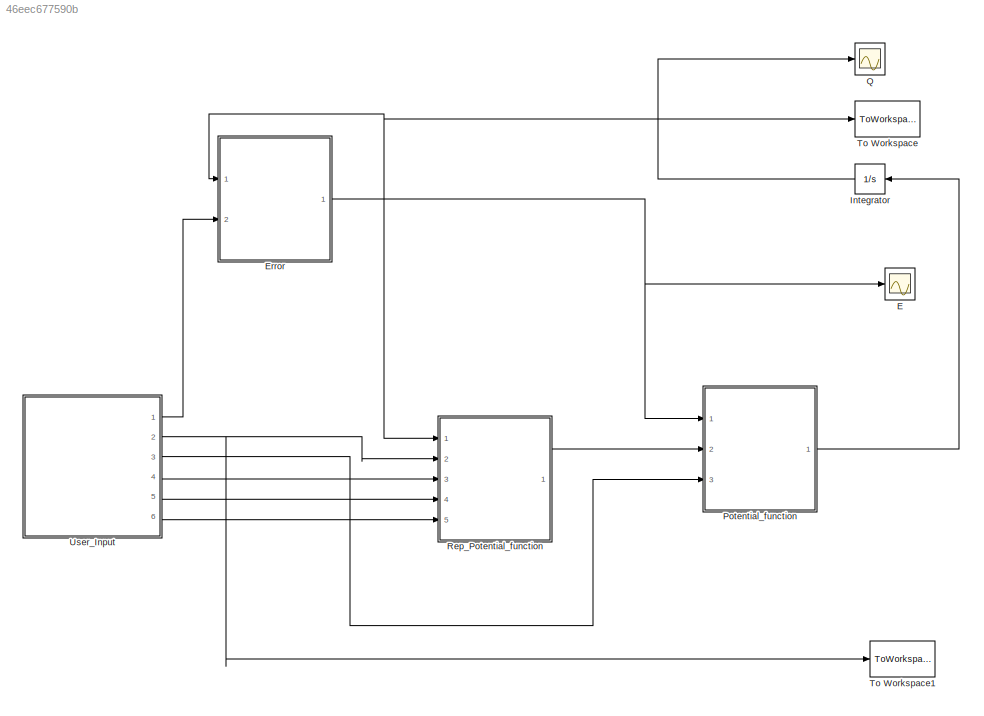
MODEL slx_46eec677590b
KIND model
CONFIG AbsTol = auto
CONFIG EnableMultiTasking = off
CONFIG FixedStep = auto
CONFIG MaxStep = auto
CONFIG MinStep = auto
CONFIG RelTol = 1e-3
CONFIG SampleTimeConstraint = Unconstrained
CONFIG Solver = VariableStepAuto
CONFIG SolverName = VariableStepAuto
CONFIG StartTime = 0.0
CONFIG StopTime = 50
BLOCK [Scope] E
  Floating = off
  NumInputPorts = 1
  Ports = [1]
  ScopeSpecificationString = Simulink.scopes.TimeScopeBlockCfg('CurrentConfiguration', extmgr.ConfigurationSet(extmgr.Configuration('Core','General UI',true),extmgr.Configuration('Core','Source UI',true),extmgr.Configuration('Sources','WiredSimulink',true,'DataLoggingVariableName','ScopeData1'),extmgr.Configuration('Visuals','Time Domain',true,'SerializedDisplays',{struct('MinYLimReal','-21.39281','MaxYLimReal','2.53526','YLa...<+1456ch>
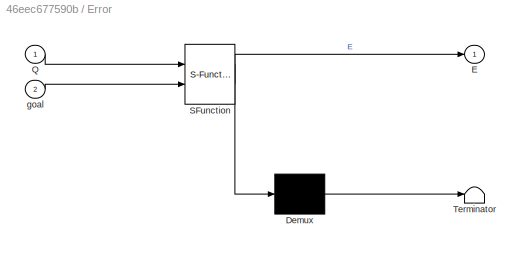
BLOCK [SubSystem] Error
  ErrorFcn = Stateflow.Translate.translate
  PermitHierarchicalResolution = ExplicitOnly
  Ports = [2, 1]
  RequestExecContextInheritance = off
  SFBlockType = MATLAB Function
  TreatAsAtomicUnit = on
BLOCK [Demux] Error/ Demux 
  Outputs = 1
  Ports = [1, 1]
BLOCK [S-Function] Error/ SFunction 
  EnableBusSupport = on
  FunctionName = sf_sfun
  PortCounts = [2 2]
  Ports = [2, 2]
  SFcnIsStateOwnerBlock = off
  SFunctionDeploymentMode = off
  Tag = Stateflow S-Function Arificial_potential 3
BLOCK [Terminator] Error/ Terminator 
BLOCK [Outport] Error/E
  IconDisplay = Port number
BLOCK [Inport] Error/Q
  IconDisplay = Port number
BLOCK [Inport] Error/goal
  IconDisplay = Port number
  Port = 2
BLOCK [Integrator] Integrator
  InitialCondition = [1;1]
  Ports = [1, 1]
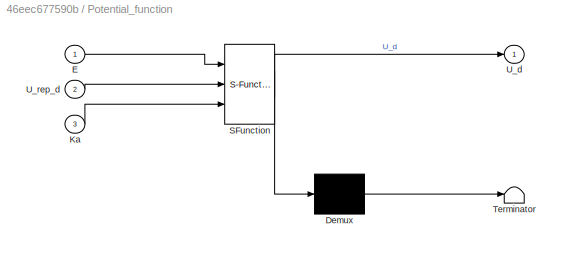
BLOCK [SubSystem] Potential_function
  ErrorFcn = Stateflow.Translate.translate
  PermitHierarchicalResolution = ExplicitOnly
  Ports = [3, 1]
  RequestExecContextInheritance = off
  SFBlockType = MATLAB Function
  TreatAsAtomicUnit = on
BLOCK [Demux] Potential_function/ Demux 
  Outputs = 1
  Ports = [1, 1]
BLOCK [S-Function] Potential_function/ SFunction 
  EnableBusSupport = on
  FunctionName = sf_sfun
  PortCounts = [3 2]
  Ports = [3, 2]
  SFcnIsStateOwnerBlock = off
  SFunctionDeploymentMode = off
  Tag = Stateflow S-Function Arificial_potential 1
BLOCK [Terminator] Potential_function/ Terminator 
BLOCK [Inport] Potential_function/E
  IconDisplay = Port number
BLOCK [Inport] Potential_function/Ka
  IconDisplay = Port number
  Port = 3
BLOCK [Outport] Potential_function/U_d
  IconDisplay = Port number
BLOCK [Inport] Potential_function/U_rep_d
  IconDisplay = Port number
  Port = 2
BLOCK [Scope] Q
  Floating = off
  NumInputPorts = 1
  Ports = [1]
  ScopeSpecificationString = Simulink.scopes.TimeScopeBlockCfg('CurrentConfiguration', extmgr.ConfigurationSet(extmgr.Configuration('Core','General UI',true),extmgr.Configuration('Core','Source UI',true),extmgr.Configuration('Sources','WiredSimulink',true),extmgr.Configuration('Visuals','Time Domain',true,'SerializedDisplays',{struct('MinYLimReal','-1.39281','MaxYLimReal','22.53526','YLabelReal','','MinYLimMag','0.00000','Max...<+1427ch>
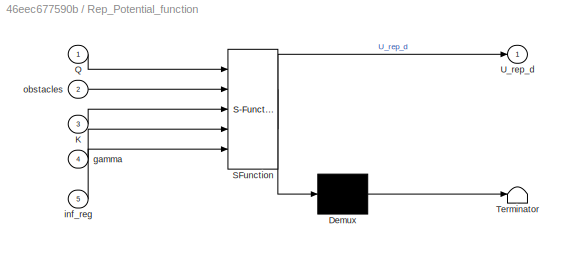
BLOCK [SubSystem] Rep_Potential_function
  ErrorFcn = Stateflow.Translate.translate
  PermitHierarchicalResolution = ExplicitOnly
  Ports = [5, 1]
  RequestExecContextInheritance = off
  SFBlockType = MATLAB Function
  TreatAsAtomicUnit = on
BLOCK [Demux] Rep_Potential_function/ Demux 
  Outputs = 1
  Ports = [1, 1]
BLOCK [S-Function] Rep_Potential_function/ SFunction 
  EnableBusSupport = on
  FunctionName = sf_sfun
  PortCounts = [5 2]
  Ports = [5, 2]
  SFcnIsStateOwnerBlock = off
  SFunctionDeploymentMode = off
  Tag = Stateflow S-Function Arificial_potential 4
BLOCK [Terminator] Rep_Potential_function/ Terminator 
BLOCK [Inport] Rep_Potential_function/K
  IconDisplay = Port number
  Port = 3
BLOCK [Inport] Rep_Potential_function/Q
  IconDisplay = Port number
BLOCK [Outport] Rep_Potential_function/U_rep_d
  IconDisplay = Port number
BLOCK [Inport] Rep_Potential_function/gamma
  IconDisplay = Port number
  Port = 4
BLOCK [Inport] Rep_Potential_function/inf_reg
  IconDisplay = Port number
  Port = 5
BLOCK [Inport] Rep_Potential_function/obstacles
  IconDisplay = Port number
  Port = 2
BLOCK [ToWorkspace] To Workspace
  FixptAsFi = on
  MaxDataPoints = inf
  Ports = [1]
  SampleTime = -1
  SaveFormat = Timeseries
  VariableName = Q
BLOCK [ToWorkspace] To Workspace1
  FixptAsFi = on
  MaxDataPoints = inf
  Ports = [1]
  SampleTime = -1
  SaveFormat = Timeseries
  VariableName = obs
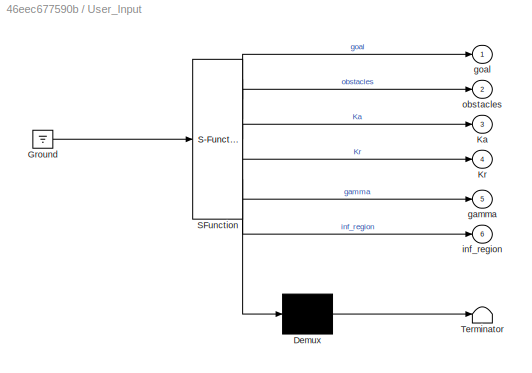
BLOCK [SubSystem] User_Input
  ErrorFcn = Stateflow.Translate.translate
  PermitHierarchicalResolution = ExplicitOnly
  Ports = [0, 6]
  RequestExecContextInheritance = off
  SFBlockType = MATLAB Function
  TreatAsAtomicUnit = on
BLOCK [Demux] User_Input/ Demux 
  Outputs = 1
  Ports = [1, 1]
BLOCK [Ground] User_Input/ Ground 
BLOCK [S-Function] User_Input/ SFunction 
  EnableBusSupport = on
  FunctionName = sf_sfun
  PortCounts = [1 7]
  Ports = [1, 7]
  SFcnIsStateOwnerBlock = off
  SFunctionDeploymentMode = off
  Tag = Stateflow S-Function Arificial_potential 2
BLOCK [Terminator] User_Input/ Terminator 
BLOCK [Outport] User_Input/Ka
  IconDisplay = Port number
  Port = 3
BLOCK [Outport] User_Input/Kr
  IconDisplay = Port number
  Port = 4
BLOCK [Outport] User_Input/gamma
  IconDisplay = Port number
  Port = 5
BLOCK [Outport] User_Input/goal
  IconDisplay = Port number
BLOCK [Outport] User_Input/inf_region
  IconDisplay = Port number
  Port = 6
BLOCK [Outport] User_Input/obstacles
  IconDisplay = Port number
  Port = 2
NET Error:1 -> E:1, Potential_function:1
NET Integrator:1 -> Error:1, Q:1, Rep_Potential_function:1, To Workspace:1
LINE Potential_function:1 -> Integrator:1
LINE Rep_Potential_function:1 -> Potential_function:2
LINE User_Input:1 -> Error:2
NET User_Input:2 -> Rep_Potential_function:2, To Workspace1:1
LINE User_Input:3 -> Potential_function:3
LINE User_Input:4 -> Rep_Potential_function:3
LINE User_Input:5 -> Rep_Potential_function:4
LINE User_Input:6 -> Rep_Potential_function:5
note: NET lines group one-source signal fan-out (src -> all destinations, sorted); 1:1 wires keep LINE
CHART Potential_function states=1 transitions=1
  STATE_LABEL 'eML_blk_kernel()'
  STATE_LABEL 'SCRIPT:\nfunction U_d = fcn(E, U_rep_d, Ka)\n\nU_attr_d = -Ka*E; %parabolic\n% U_attr_d = -Ka*E/norm(E);%conical takes more time. So when stimulating, increase time param\nU_d = U_attr_d + U_rep_d;\n'
CHART User_Input states=1 transitions=1
  STATE_LABEL 'eML_blk_kernel()'
  STATE_LABEL 'SCRIPT:\nfunction [goal, obstacles, Ka, Kr, gamma, inf_region] = fcn()\nstart = [1;1];\nKa = 1;\nKr = 1;\ngamma = 2;\ninf_region = 2;\ngoal = [20;20];\nobstacles = [[2 4.5 3]; %r, x, y\n             [2 3 12];\n             [3 15 15]];\n             \n'
CHART Error states=1 transitions=1
  STATE_LABEL 'eML_blk_kernel()'
  STATE_LABEL 'SCRIPT:\nfunction E = fcn(Q, goal)\nE = Q - goal;\n'
CHART Rep_Potential_function states=1 transitions=1
  STATE_LABEL 'eML_blk_kernel()'
  STATE_LABEL "SCRIPT:\nfunction U_rep_d = fcn(Q, obstacles, K, gamma, inf_reg)\nU_rep_d = zeros(2, 1);\nfor i = 1:size(obstacles, 1)\n    r = obstacles(i, 1);\n    c = obstacles(i, 2:3)';\n    dist = norm(Q - c);\n    if (dist - r) <= inf_reg\n        U_rep_curr = (K*(Q - c)*(1/(dist - r) - 1/inf_reg)^(gamma - 1))/(dist*(dist - r)^2);\n        U_rep_d = U_rep_d + U_rep_curr;   \n    end\nend\n\n"
